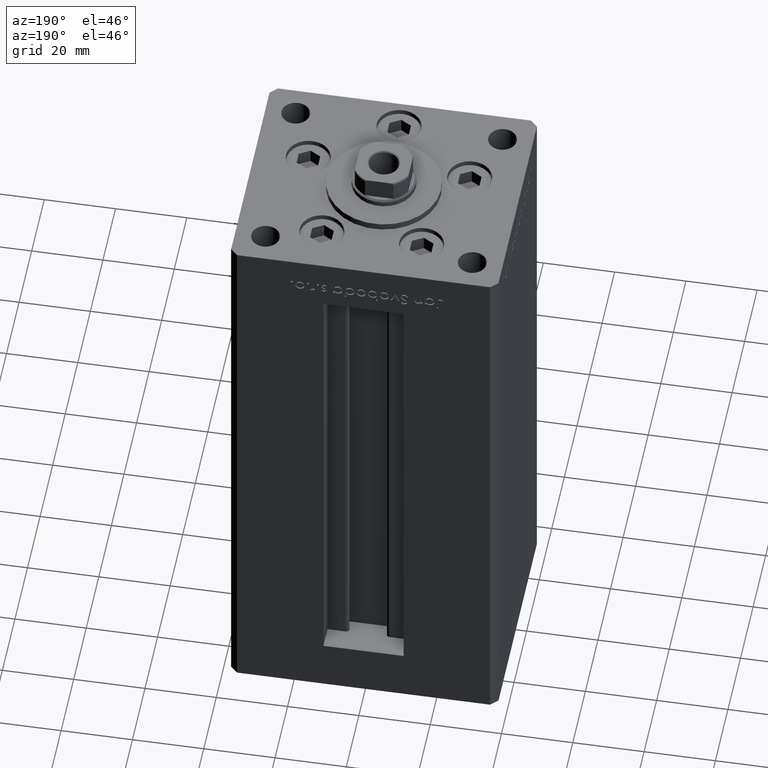
[diagram: clean part render]
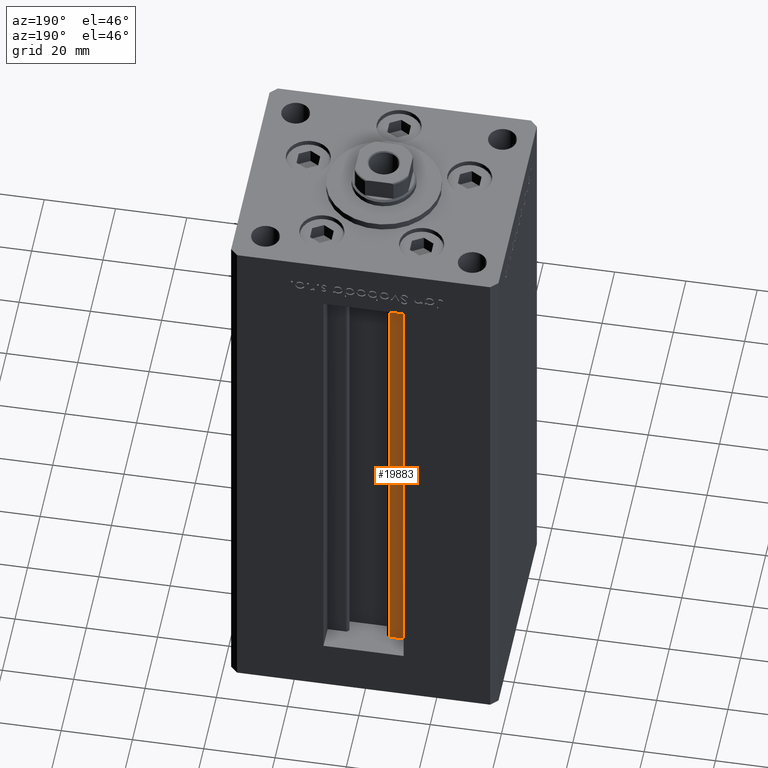
[diagram: same view with one face highlighted and labeled with its STEP entity id]
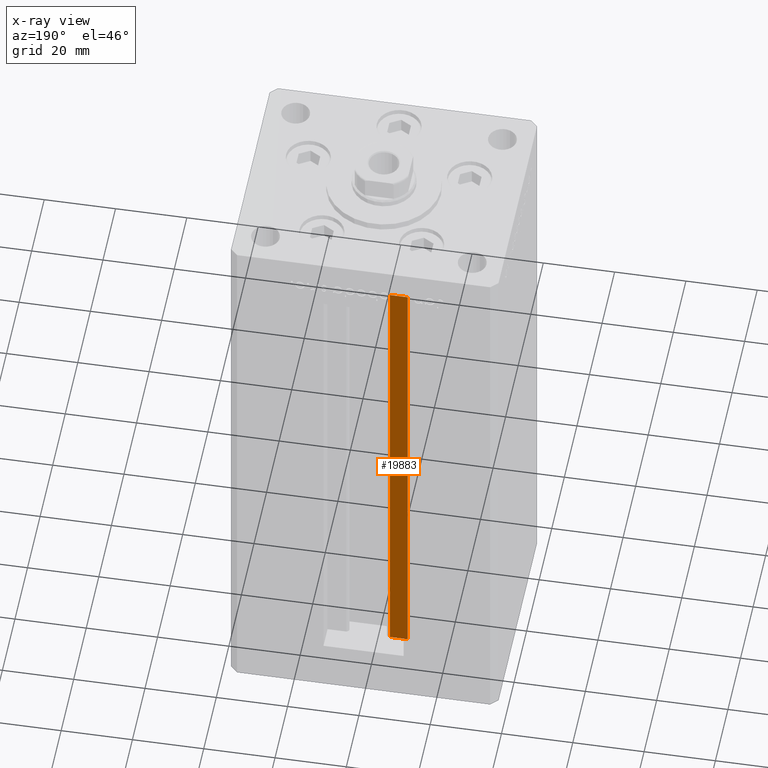
[diagram: x-ray of the same camera — body ghosted, the highlighted face saturated]
A machine part, auxiliary view. The second image highlights one B-rep face of the part: STEP entity #19883.
The next image is the same camera in x-ray: the body ghosted, the highlighted face saturated — about 0% of this face is hidden behind the body in this view.
In plain terms, the highlighted planar face has unit normal (0, -1, 0).
Its self-contained STEP definition (entity closure, byte-faithful):
#818 = ORIENTED_EDGE ( 'NONE', *, *, #45341, .F. ) ;
#2626 = LINE ( 'NONE', #23063, #13299 ) ;
#3022 = DIRECTION ( 'NONE',  ( -1.000000000000000000, 0.000000000000000000, 0.000000000000000000 ) ) ;
#6443 = CARTESIAN_POINT ( 'NONE',  ( 0.000000000000000000, 25.99999999999999289, 136.0000000000000000 ) ) ;
#7144 = VERTEX_POINT ( 'NONE', #9179 ) ;
#8723 = CARTESIAN_POINT ( 'NONE',  ( -11.25000000000000178, 25.99999999999999289, 0.000000000000000000 ) ) ;
#9179 = CARTESIAN_POINT ( 'NONE',  ( -6.183333333334001480, 25.99999999999999289, 136.0000000000000000 ) ) ;
#9658 = LINE ( 'NONE', #50267, #47042 ) ;
#9855 = DIRECTION ( 'NONE',  ( 0.000000000000000000, 0.000000000000000000, -1.000000000000000000 ) ) ;
#10946 = VERTEX_POINT ( 'NONE', #42187 ) ;
#13299 = VECTOR ( 'NONE', #18608, 1000.000000000000000 ) ;
#15365 = VERTEX_POINT ( 'NONE', #43714 ) ;
#16171 = EDGE_CURVE ( 'NONE', #10946, #7144, #2626, .T. ) ;
#16295 = ORIENTED_EDGE ( 'NONE', *, *, #17572, .F. ) ;
#17572 = EDGE_CURVE ( 'NONE', #7144, #15365, #22940, .T. ) ;
#18608 = DIRECTION ( 'NONE',  ( -0.000000000000000000, -0.000000000000000000, 1.000000000000000000 ) ) ;
#19883 = ADVANCED_FACE ( 'NONE', ( #20873 ), #28742, .F. ) ;
#20873 = FACE_OUTER_BOUND ( 'NONE', #40889, .T. ) ;
#22131 = CARTESIAN_POINT ( 'NONE',  ( -6.183333333334001480, 25.99999999999999289, 0.000000000000000000 ) ) ;
#22940 = LINE ( 'NONE', #6443, #41806 ) ;
#23063 = CARTESIAN_POINT ( 'NONE',  ( -6.183333333334001480, 25.99999999999999289, 0.000000000000000000 ) ) ;
#25061 = EDGE_CURVE ( 'NONE', #28115, #15365, #9658, .T. ) ;
#25076 = CARTESIAN_POINT ( 'NONE',  ( -6.183333333334001480, 25.99999999999999289, 0.000000000000000000 ) ) ;
#25656 = DIRECTION ( 'NONE',  ( -0.000000000000000000, -0.000000000000000000, 1.000000000000000000 ) ) ;
#28115 = VERTEX_POINT ( 'NONE', #8723 ) ;
#28742 = PLANE ( 'NONE',  #49388 ) ;
#29219 = LINE ( 'NONE', #22131, #45592 ) ;
#33695 = ORIENTED_EDGE ( 'NONE', *, *, #25061, .T. ) ;
#40889 = EDGE_LOOP ( 'NONE', ( #43067, #818, #33695, #16295 ) ) ;
#41049 = DIRECTION ( 'NONE',  ( 0.000000000000000000, -1.000000000000000000, -0.000000000000000000 ) ) ;
#41806 = VECTOR ( 'NONE', #3022, 1000.000000000000000 ) ;
#42187 = CARTESIAN_POINT ( 'NONE',  ( -6.183333333334001480, 25.99999999999999289, 0.000000000000000000 ) ) ;
#43067 = ORIENTED_EDGE ( 'NONE', *, *, #16171, .F. ) ;
#43714 = CARTESIAN_POINT ( 'NONE',  ( -11.25000000000000178, 25.99999999999999289, 136.0000000000000000 ) ) ;
#45341 = EDGE_CURVE ( 'NONE', #28115, #10946, #29219, .T. ) ;
#45592 = VECTOR ( 'NONE', #45704, 1000.000000000000000 ) ;
#45704 = DIRECTION ( 'NONE',  ( 1.000000000000000000, -0.000000000000000000, -0.000000000000000000 ) ) ;
#47042 = VECTOR ( 'NONE', #25656, 1000.000000000000000 ) ;
#49388 = AXIS2_PLACEMENT_3D ( 'NONE', #25076, #41049, #9855 ) ;
#50267 = CARTESIAN_POINT ( 'NONE',  ( -11.25000000000000178, 25.99999999999999289, 0.000000000000000000 ) ) ;